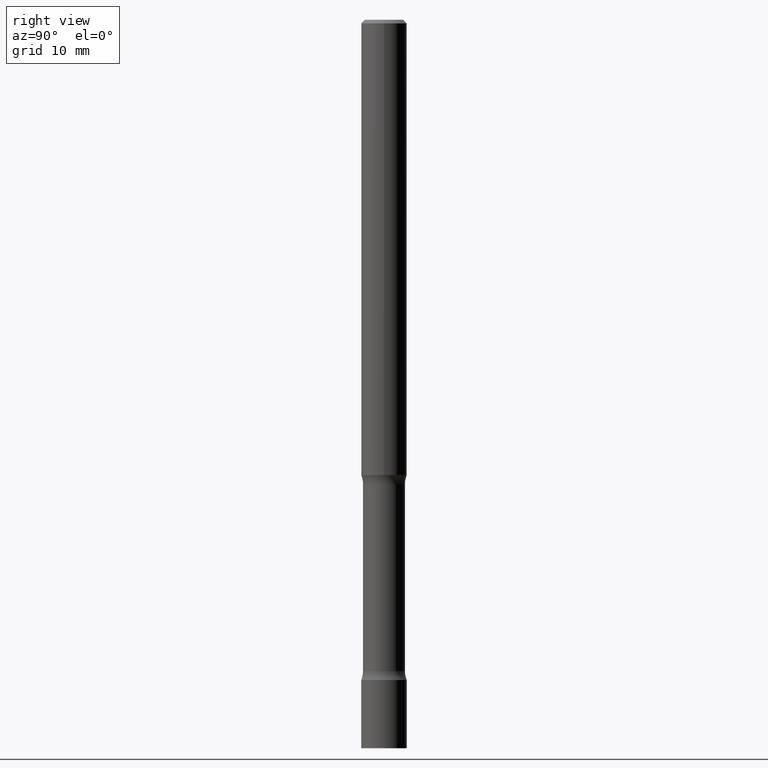
[diagram: clean part render]
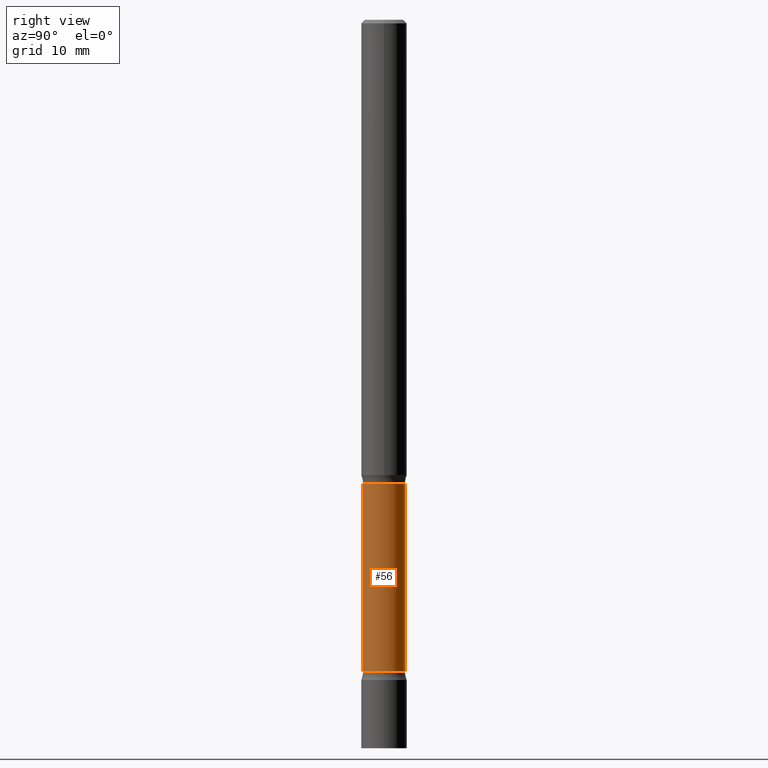
[diagram: same view with one face highlighted and labeled with its STEP entity id]
A machine part, right view. The second image highlights one B-rep face of the part: STEP entity #56.
In plain terms, the highlighted cylindrical surface (edge-blend (fillet) strip) has radius 2.921 mm, axis along (0, -0, -1).
Its self-contained STEP definition (entity closure, byte-faithful):
#13 = DIRECTION ( 'NONE',  ( 6.982962677686265133E-15, 1.000000000000000000, -4.751039988981317081E-15 ) ) ;
#15 = LINE ( 'NONE', #367, #177 ) ;
#49 = CARTESIAN_POINT ( 'NONE',  ( 8.735351864089074202E-29, -1.249942023497999275E-14, -3.576010205144336318 ) ) ;
#56 = ADVANCED_FACE ( 'NONE', ( #455 ), #210, .T. ) ;
#87 = EDGE_LOOP ( 'NONE', ( #230, #192, #271, #352 ) ) ;
#92 = CARTESIAN_POINT ( 'NONE',  ( 8.030407079339822620E-16, 0.1149999999999910261, -2.548989794855663682 ) ) ;
#147 = DIRECTION ( 'NONE',  ( 6.982962677686265922E-15, 1.000000000000000000, -4.751039988981323392E-15 ) ) ;
#167 = AXIS2_PLACEMENT_3D ( 'NONE', #49, #196, #147 ) ;
#177 = VECTOR ( 'NONE', #288, 39.37007874015748143 ) ;
#182 = CARTESIAN_POINT ( 'NONE',  ( -8.232597597324957230E-16, -0.1150000000000126060, -3.576010205144335874 ) ) ;
#192 = ORIENTED_EDGE ( 'NONE', *, *, #433, .T. ) ;
#195 = DIRECTION ( 'NONE',  ( 2.666918422413057780E-29, -3.174352884275353825E-15, -1.000000000000000000 ) ) ;
#196 = DIRECTION ( 'NONE',  ( 2.666918422413057780E-29, -3.174352884275353825E-15, -1.000000000000000000 ) ) ;
#198 = VERTEX_POINT ( 'NONE', #182 ) ;
#208 = DIRECTION ( 'NONE',  ( 2.666918422413057780E-29, -3.174352884275353825E-15, -1.000000000000000000 ) ) ;
#210 = CYLINDRICAL_SURFACE ( 'NONE', #413, 0.1150000000000001715 ) ;
#226 = VERTEX_POINT ( 'NONE', #92 ) ;
#230 = ORIENTED_EDGE ( 'NONE', *, *, #314, .T. ) ;
#234 = CARTESIAN_POINT ( 'NONE',  ( 5.996372211695994382E-29, -9.239295033370484915E-15, -2.548989794855663238 ) ) ;
#251 = CARTESIAN_POINT ( 'NONE',  ( 9.866098058904775575E-29, -1.384531346318338381E-14, -4.000000000000000000 ) ) ;
#260 = VERTEX_POINT ( 'NONE', #291 ) ;
#271 = ORIENTED_EDGE ( 'NONE', *, *, #366, .F. ) ;
#288 = DIRECTION ( 'NONE',  ( 2.666918422413057780E-29, -3.174352884275353825E-15, -1.000000000000000000 ) ) ;
#291 = CARTESIAN_POINT ( 'NONE',  ( -8.232597597325262914E-16, -0.1150000000000094835, -2.548989794855662794 ) ) ;
#309 = VERTEX_POINT ( 'NONE', #410 ) ;
#314 = EDGE_CURVE ( 'NONE', #226, #260, #322, .T. ) ;
#322 = CIRCLE ( 'NONE', #384, 0.1150000000000002548 ) ;
#329 = EDGE_CURVE ( 'NONE', #226, #309, #432, .T. ) ;
#352 = ORIENTED_EDGE ( 'NONE', *, *, #329, .F. ) ;
#366 = EDGE_CURVE ( 'NONE', #309, #198, #497, .T. ) ;
#367 = CARTESIAN_POINT ( 'NONE',  ( -7.889572697436285910E-16, -0.1150000000000140216, -3.999999999999999556 ) ) ;
#376 = DIRECTION ( 'NONE',  ( 6.982962677686265922E-15, 1.000000000000000000, -4.751039988981320237E-15 ) ) ;
#384 = AXIS2_PLACEMENT_3D ( 'NONE', #234, #195, #13 ) ;
#404 = VECTOR ( 'NONE', #427, 39.37007874015748143 ) ;
#410 = CARTESIAN_POINT ( 'NONE',  ( 8.030407079340086889E-16, 0.1149999999999876121, -3.576010205144337206 ) ) ;
#413 = AXIS2_PLACEMENT_3D ( 'NONE', #251, #208, #376 ) ;
#427 = DIRECTION ( 'NONE',  ( 2.666918422413057780E-29, -3.174352884275353825E-15, -1.000000000000000000 ) ) ;
#432 = LINE ( 'NONE', #441, #404 ) ;
#433 = EDGE_CURVE ( 'NONE', #260, #198, #15, .T. ) ;
#441 = CARTESIAN_POINT ( 'NONE',  ( 8.030407079340205218E-16, 0.1149999999999863215, -4.000000000000000888 ) ) ;
#455 = FACE_OUTER_BOUND ( 'NONE', #87, .T. ) ;
#497 = CIRCLE ( 'NONE', #167, 0.1150000000000001021 ) ;